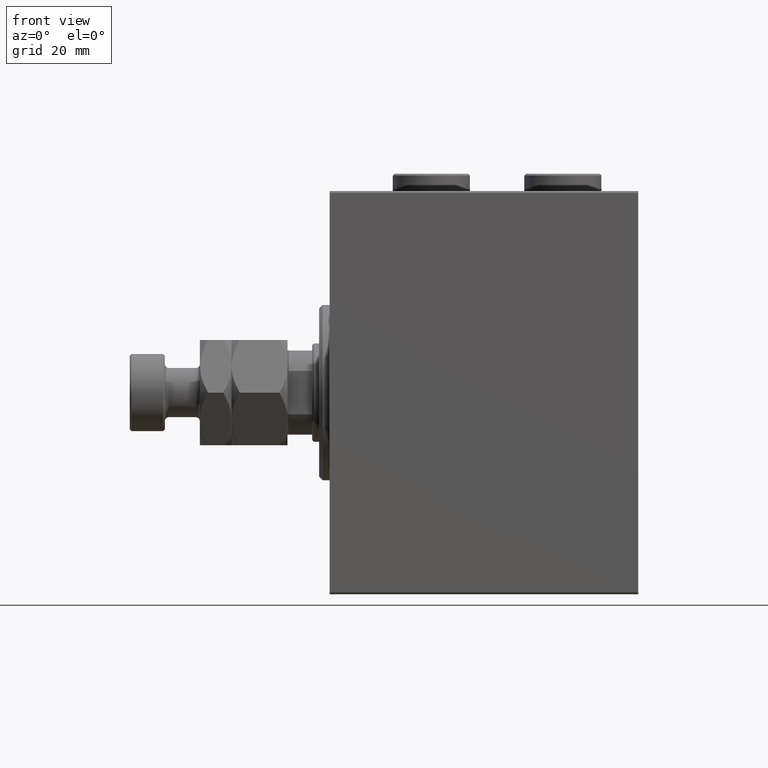
[diagram: clean part render]
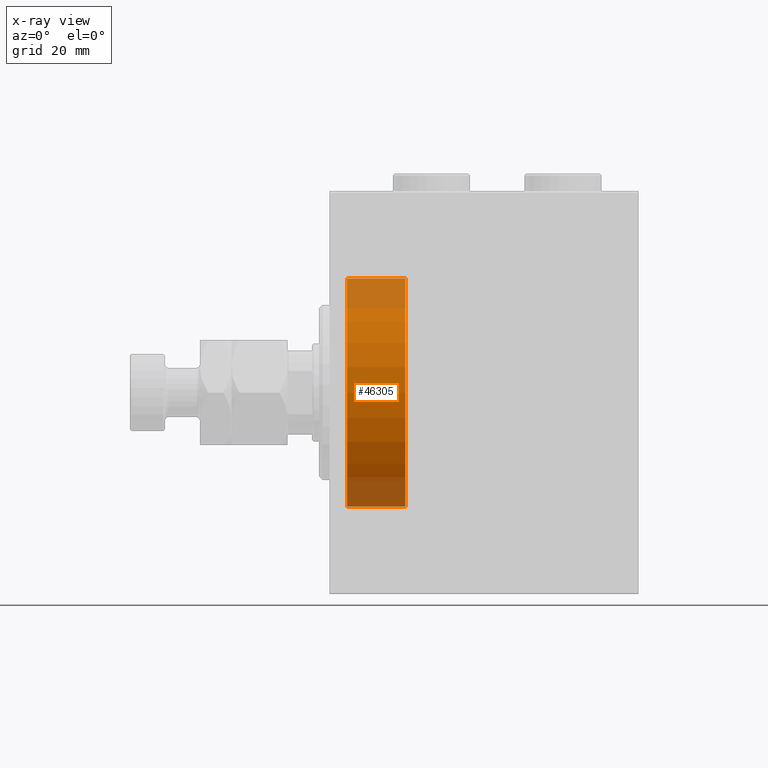
[diagram: x-ray — body ghosted, one internal face saturated and labeled with its STEP entity id]
A machine part, front view, then the same camera in x-ray: the body is ghosted and one INTERNAL B-rep face — a face not visible from any outside direction — is saturated and labeled: STEP entity #46305.
In plain terms, the highlighted cylindrical surface (partial cylindrical patch) has radius 32.5 mm, axis along (-1, -0, -0).
Its self-contained STEP definition (entity closure, byte-faithful):
#3583 = EDGE_CURVE ( 'NONE', #16166, #3740, #34728, .T. ) ;
#3740 = VERTEX_POINT ( 'NONE', #13594 ) ;
#4970 = CARTESIAN_POINT ( 'NONE',  ( 5.000000000000000000, 0.000000000000000000, 0.000000000000000000 ) ) ;
#10469 = EDGE_CURVE ( 'NONE', #46677, #3740, #19961, .T. ) ;
#10850 = VECTOR ( 'NONE', #38280, 1000.000000000000000 ) ;
#12287 = DIRECTION ( 'NONE',  ( -1.000000000000000000, 0.000000000000000000, 0.000000000000000000 ) ) ;
#12599 = CARTESIAN_POINT ( 'NONE',  ( 21.60000000000000142, 0.000000000000000000, 0.000000000000000000 ) ) ;
#13594 = CARTESIAN_POINT ( 'NONE',  ( 5.000000000000000000, 0.000000000000000000, 32.50000000000000000 ) ) ;
#13876 = DIRECTION ( 'NONE',  ( -1.000000000000000000, -0.000000000000000000, -0.000000000000000000 ) ) ;
#16166 = VERTEX_POINT ( 'NONE', #36774 ) ;
#16520 = CYLINDRICAL_SURFACE ( 'NONE', #32119, 32.50000000000000000 ) ;
#18924 = CIRCLE ( 'NONE', #28741, 32.50000000000000000 ) ;
#18939 = DIRECTION ( 'NONE',  ( 0.000000000000000000, 0.000000000000000000, 1.000000000000000000 ) ) ;
#19961 = CIRCLE ( 'NONE', #29807, 32.50000000000000000 ) ;
#21222 = CARTESIAN_POINT ( 'NONE',  ( 21.60000000000000142, 0.000000000000000000, 32.50000000000000000 ) ) ;
#23602 = CARTESIAN_POINT ( 'NONE',  ( 21.60000000000000142, 3.980102097228897837E-15, -32.50000000000000000 ) ) ;
#25074 = ORIENTED_EDGE ( 'NONE', *, *, #41509, .T. ) ;
#25878 = CARTESIAN_POINT ( 'NONE',  ( 5.000000000000000000, 3.980102097228897837E-15, -32.50000000000000000 ) ) ;
#27911 = DIRECTION ( 'NONE',  ( -1.000000000000000000, 0.000000000000000000, 0.000000000000000000 ) ) ;
#28608 = DIRECTION ( 'NONE',  ( 0.000000000000000000, 0.000000000000000000, 1.000000000000000000 ) ) ;
#28741 = AXIS2_PLACEMENT_3D ( 'NONE', #12599, #27911, #28608 ) ;
#29807 = AXIS2_PLACEMENT_3D ( 'NONE', #4970, #12287, #18939 ) ;
#30677 = EDGE_LOOP ( 'NONE', ( #44447, #25074, #36500, #31848 ) ) ;
#30713 = FACE_OUTER_BOUND ( 'NONE', #30677, .T. ) ;
#31631 = CARTESIAN_POINT ( 'NONE',  ( 21.60000000000000142, 0.000000000000000000, 0.000000000000000000 ) ) ;
#31848 = ORIENTED_EDGE ( 'NONE', *, *, #3583, .F. ) ;
#32119 = AXIS2_PLACEMENT_3D ( 'NONE', #31631, #38509, #45148 ) ;
#34451 = EDGE_CURVE ( 'NONE', #42899, #16166, #18924, .T. ) ;
#34728 = LINE ( 'NONE', #21222, #45809 ) ;
#36500 = ORIENTED_EDGE ( 'NONE', *, *, #10469, .T. ) ;
#36774 = CARTESIAN_POINT ( 'NONE',  ( 21.60000000000000142, 0.000000000000000000, 32.50000000000000000 ) ) ;
#37575 = LINE ( 'NONE', #23602, #10850 ) ;
#38280 = DIRECTION ( 'NONE',  ( -1.000000000000000000, -0.000000000000000000, -0.000000000000000000 ) ) ;
#38509 = DIRECTION ( 'NONE',  ( -1.000000000000000000, -0.000000000000000000, -0.000000000000000000 ) ) ;
#41509 = EDGE_CURVE ( 'NONE', #42899, #46677, #37575, .T. ) ;
#42899 = VERTEX_POINT ( 'NONE', #45712 ) ;
#44447 = ORIENTED_EDGE ( 'NONE', *, *, #34451, .F. ) ;
#45148 = DIRECTION ( 'NONE',  ( 0.000000000000000000, 0.000000000000000000, 1.000000000000000000 ) ) ;
#45712 = CARTESIAN_POINT ( 'NONE',  ( 21.60000000000000142, 3.980102097228897837E-15, -32.50000000000000000 ) ) ;
#45809 = VECTOR ( 'NONE', #13876, 1000.000000000000000 ) ;
#46305 = ADVANCED_FACE ( 'NONE', ( #30713 ), #16520, .F. ) ;
#46677 = VERTEX_POINT ( 'NONE', #25878 ) ;